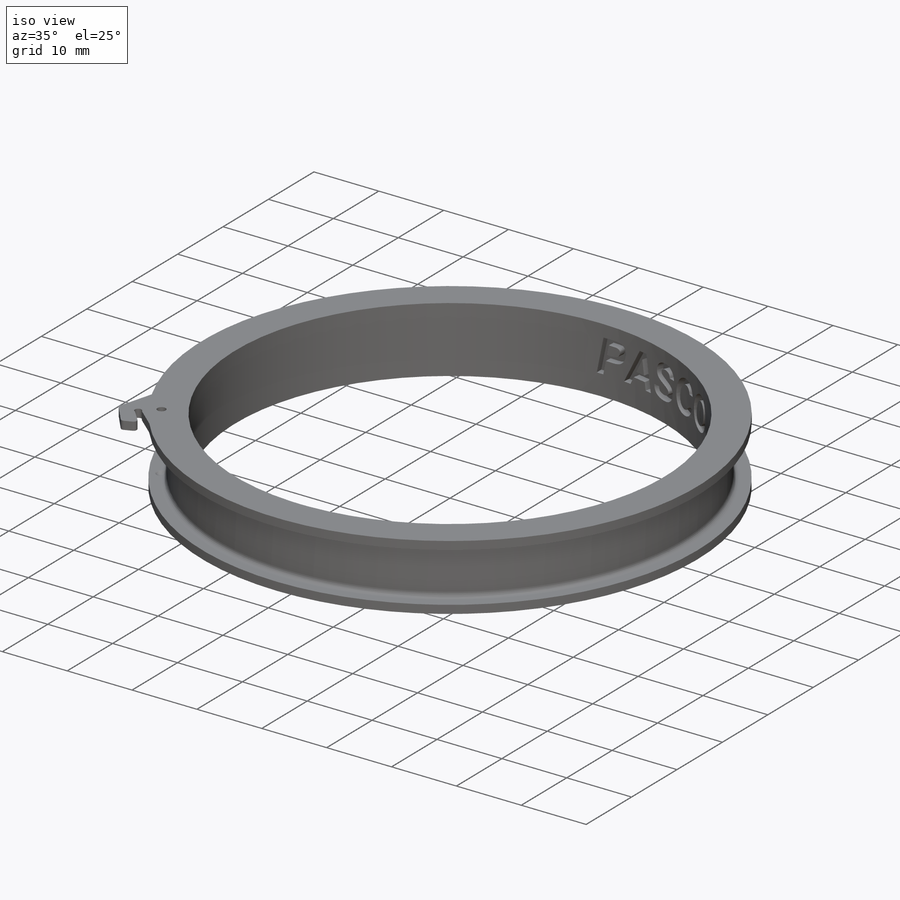
[diagram: iso view]
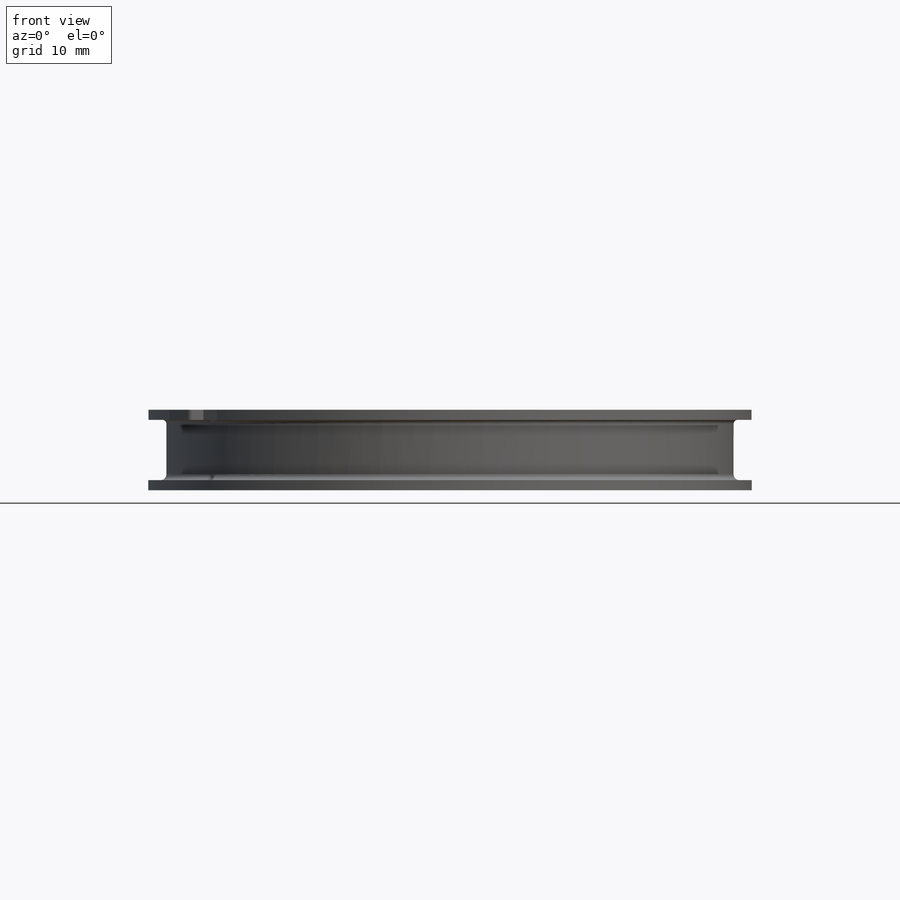
[diagram: front view]
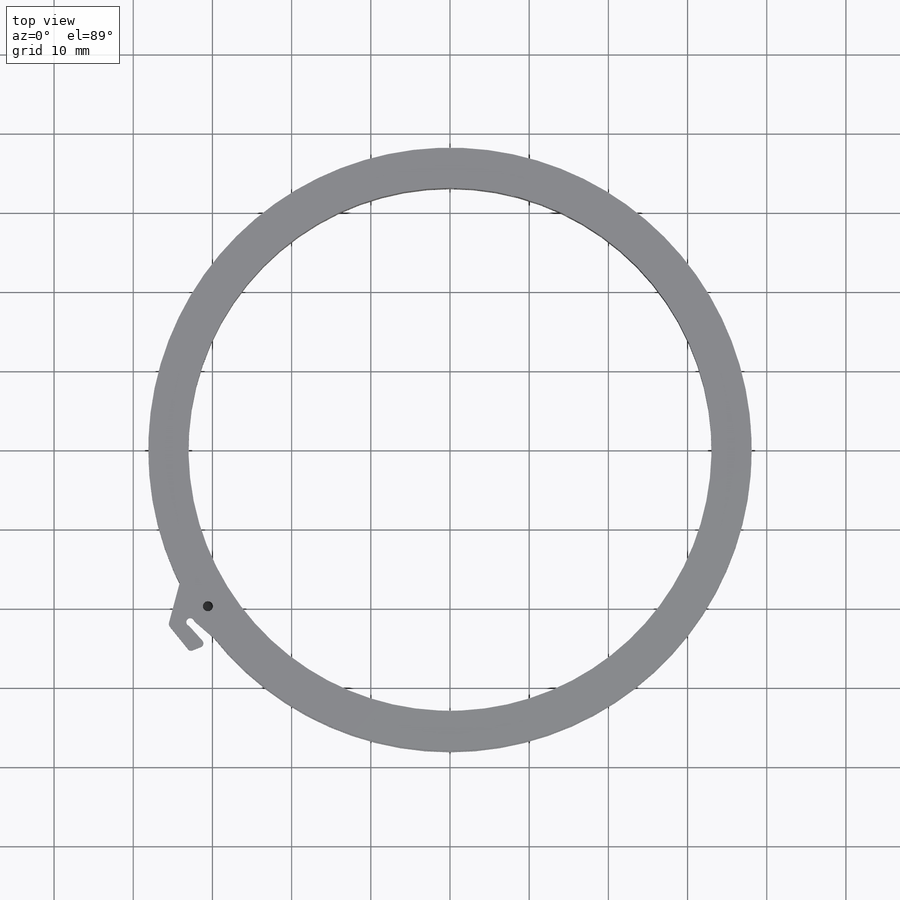
[diagram: top view]
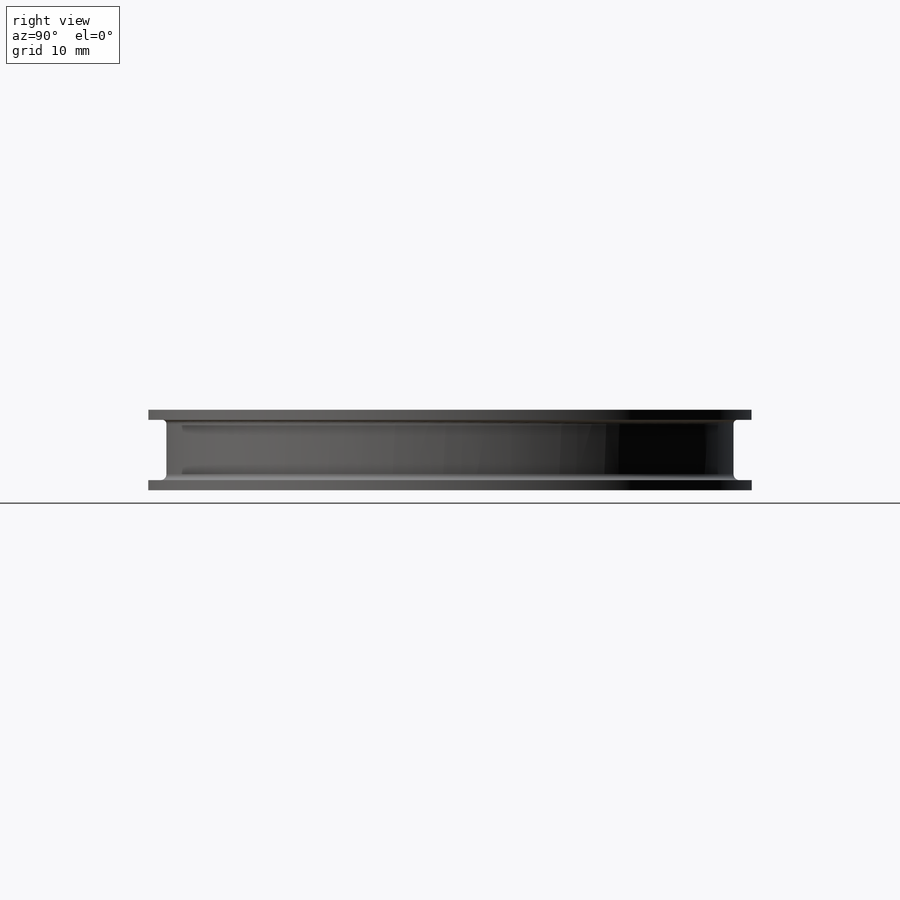
[diagram: right view]
SOLIDWORKS PART (.sldprt)
format: sldprt  version: not decoded by parser v0  size: 723,456 bytes
history: native  units: mm
features: sketch x7, fillet x6, cut_extrude x4, plane x3, extrude x2, material x1 (+10 scaffold rows collapsed)
feature tree (33):
  scaffold x10  (default folders/planes/origin — collapsed)
  material  "Material <not specified>"
  plane  "Front XY"
  plane  "Top XZ"
  plane  "Right YZ"
  sketch  "Ring"  dims[D1=76.2mm D2=5.08mm]
  extrude  "Boss-Extrude1"  Depth=10.16mm
  sketch  "Groove"  dims[D1=2.286mm]
  cut_extrude  "Cut-Extrude2"  Depth=7.62mm
  fillet  "Fillet1"  Radius=0.508mm
  sketch  "PASCO"  dims[D1=1.016mm]
  sketch  "hole"  dims[D1=1.27mm D2=36.449mm]
  cut_extrude  "Cut-Extrude7"  [1 undecoded]
  sketch  "Sketch2"
  extrude  "Boss-Extrude2"  Depth=1.27mm
  sketch  "Sketch3 Notch Hole"  dims[D1=1.016mm]
  cut_extrude  "Cut-Extrude8"  Depth=2.032mm
  sketch  "Sketch4 Notch"
  cut_extrude  "Cut-Extrude9"  Depth=1.27mm
  fillet  "Fillet5"  Radius=0.508mm
  fillet  "Fillet6"  Radius=0.508mm
  fillet  "Fillet7"  Radius=0.508mm
  fillet  "Fillet14"  Radius=0.254mm
  fillet  "Fillet15"  Radius=0.762mm
decode coverage: 16 of 19 modeling features carry decoded parameters
note: 1 parameter value undecoded
note: suppression state not decoded; provenance and decode notes live in map.json
